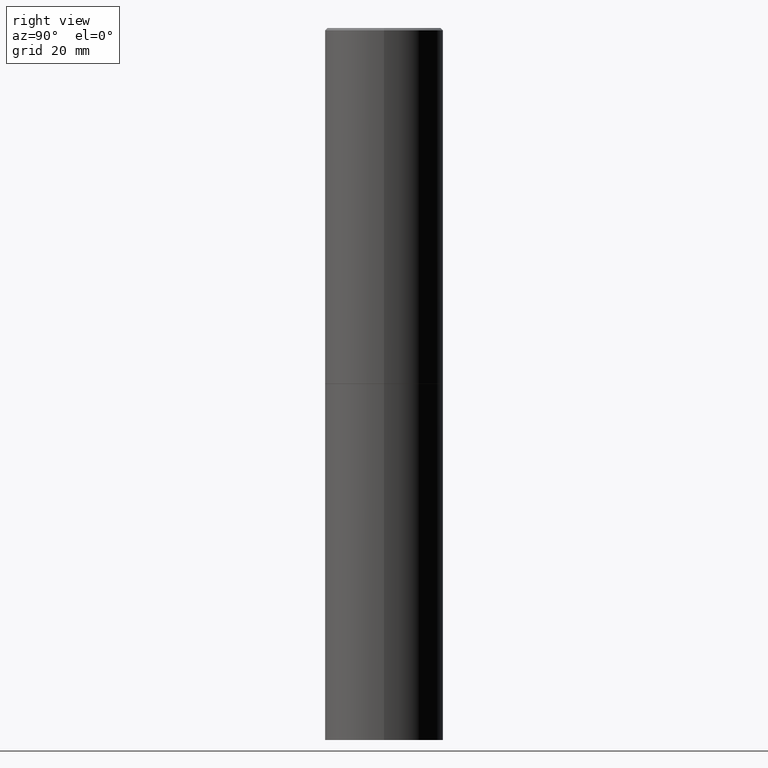
[diagram: clean part render]
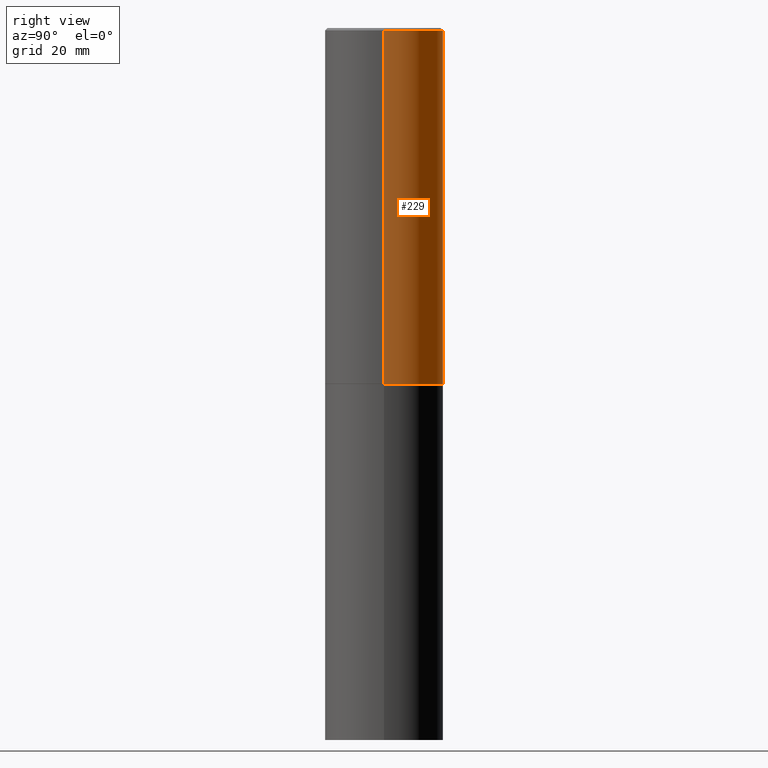
[diagram: same view with one face highlighted and labeled with its STEP entity id]
A machine part, right view. The second image highlights one B-rep face of the part: STEP entity #229.
In plain terms, the highlighted cylindrical surface (partial cylindrical patch) has radius 12.5006 mm, axis along (-0, 0, 1).
Its self-contained STEP definition (entity closure, byte-faithful):
#1 = ORIENTED_EDGE ( 'NONE', *, *, #124, .F. ) ;
#3 = EDGE_LOOP ( 'NONE', ( #225, #120, #30, #1 ) ) ;
#8 = DIRECTION ( 'NONE',  ( -2.445468806185136877E-29, 3.491481338843145188E-15, 1.000000000000000000 ) ) ;
#10 = DIRECTION ( 'NONE',  ( -2.445468806185136597E-29, 3.491481338843145583E-15, 1.000000000000000000 ) ) ;
#30 = ORIENTED_EDGE ( 'NONE', *, *, #195, .F. ) ;
#92 = VERTEX_POINT ( 'NONE', #230 ) ;
#98 = CARTESIAN_POINT ( 'NONE',  ( -0.4921499999999999764, -1.690881473276754954E-15, -2.951700000000000212 ) ) ;
#100 = CIRCLE ( 'NONE', #219, 0.4921499999999996988 ) ;
#102 = FACE_OUTER_BOUND ( 'NONE', #3, .T. ) ;
#120 = ORIENTED_EDGE ( 'NONE', *, *, #313, .T. ) ;
#124 = EDGE_CURVE ( 'NONE', #92, #343, #221, .T. ) ;
#132 = EDGE_CURVE ( 'NONE', #92, #169, #275, .T. ) ;
#146 = CARTESIAN_POINT ( 'NONE',  ( -0.4921499999999996988, 3.366835455046430506E-15, -0.02000000000000009409 ) ) ;
#147 = DIRECTION ( 'NONE',  ( -2.445468806185136877E-29, 3.491481338843145188E-15, 1.000000000000000000 ) ) ;
#156 = CARTESIAN_POINT ( 'NONE',  ( 0.000000000000000000, 0.000000000000000000, 0.000000000000000000 ) ) ;
#160 = CARTESIAN_POINT ( 'NONE',  ( 0.4921499999999996988, -3.446223716380120377E-15, -0.02000000000000009409 ) ) ;
#169 = VERTEX_POINT ( 'NONE', #98 ) ;
#172 = VECTOR ( 'NONE', #147, 39.37007874015748143 ) ;
#178 = LINE ( 'NONE', #303, #297 ) ;
#195 = EDGE_CURVE ( 'NONE', #343, #260, #100, .T. ) ;
#207 = CARTESIAN_POINT ( 'NONE',  ( 4.890937612370296805E-31, -6.982962677686323656E-17, -0.02000000000000009409 ) ) ;
#211 = CYLINDRICAL_SURFACE ( 'NONE', #308, 0.4921499999999998098 ) ;
#212 = DIRECTION ( 'NONE',  ( 1.000000000000000000, -6.982962677686265922E-15, 4.876176775795935793E-29 ) ) ;
#218 = CARTESIAN_POINT ( 'NONE',  ( 0.4921499999999998098, -3.436665081823294593E-15, 2.399810400207968762E-29 ) ) ;
#219 = AXIS2_PLACEMENT_3D ( 'NONE', #207, #248, #262 ) ;
#221 = LINE ( 'NONE', #218, #172 ) ;
#225 = ORIENTED_EDGE ( 'NONE', *, *, #132, .T. ) ;
#229 = ADVANCED_FACE ( 'NONE', ( #102 ), #211, .T. ) ;
#230 = CARTESIAN_POINT ( 'NONE',  ( 0.4921499999999999764, -1.374247054968660936E-14, -2.951700000000000212 ) ) ;
#248 = DIRECTION ( 'NONE',  ( -2.445468806185136597E-29, 3.491481338843145583E-15, 1.000000000000000000 ) ) ;
#260 = VERTEX_POINT ( 'NONE', #146 ) ;
#262 = DIRECTION ( 'NONE',  ( 1.000000000000000000, -6.982962677686265922E-15, 0.000000000000000000 ) ) ;
#275 = CIRCLE ( 'NONE', #329, 0.4921499999999999764 ) ;
#296 = DIRECTION ( 'NONE',  ( 1.000000000000000000, -6.982962677686265922E-15, 0.000000000000000000 ) ) ;
#297 = VECTOR ( 'NONE', #8, 39.37007874015748143 ) ;
#303 = CARTESIAN_POINT ( 'NONE',  ( -0.4921499999999998098, 3.496936074043331714E-15, -2.420853904668950949E-29 ) ) ;
#308 = AXIS2_PLACEMENT_3D ( 'NONE', #156, #358, #212 ) ;
#313 = EDGE_CURVE ( 'NONE', #169, #260, #178, .T. ) ;
#329 = AXIS2_PLACEMENT_3D ( 'NONE', #361, #10, #296 ) ;
#343 = VERTEX_POINT ( 'NONE', #160 ) ;
#358 = DIRECTION ( 'NONE',  ( -2.445468806185136597E-29, 3.491481338843145583E-15, 1.000000000000000000 ) ) ;
#361 = CARTESIAN_POINT ( 'NONE',  ( 7.218290275216666916E-29, -1.030580546786331359E-14, -2.951700000000000212 ) ) ;